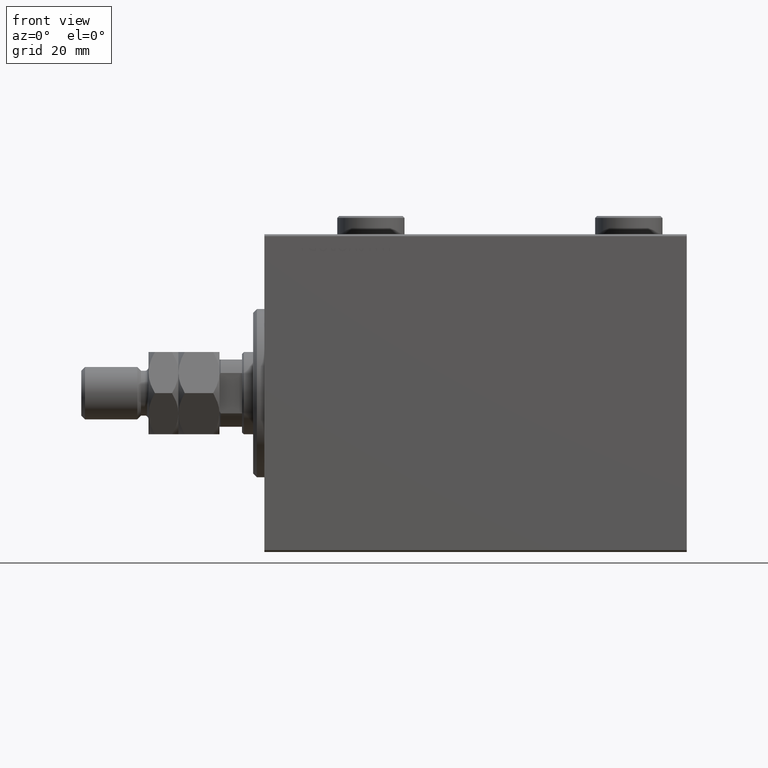
[diagram: clean part render]
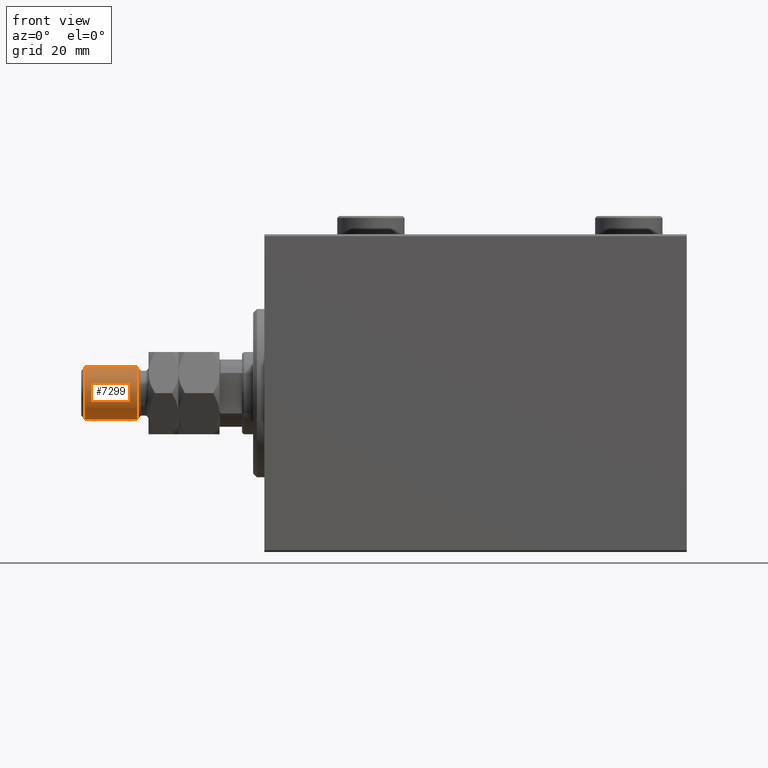
[diagram: same view with one face highlighted and labeled with its STEP entity id]
A machine part, front view. The second image highlights one B-rep face of the part: STEP entity #7299.
In plain terms, the highlighted cylindrical surface (edge-blend (fillet) strip) has radius 7 mm, axis along (1, -0, -0).
Its self-contained STEP definition (entity closure, byte-faithful):
#673 = ORIENTED_EDGE ( 'NONE', *, *, #34372, .T. ) ;
#776 = AXIS2_PLACEMENT_3D ( 'NONE', #38901, #21483, #10975 ) ;
#2228 = LINE ( 'NONE', #30619, #37903 ) ;
#3081 = CARTESIAN_POINT ( 'NONE',  ( 0.000000000000000000, 0.000000000000000000, 35.99999999999999289 ) ) ;
#3882 = FACE_OUTER_BOUND ( 'NONE', #28947, .T. ) ;
#6115 = CYLINDRICAL_SURFACE ( 'NONE', #36049, 7.000000000000000000 ) ;
#7299 = ADVANCED_FACE ( 'NONE', ( #3882 ), #6115, .T. ) ;
#10451 = VERTEX_POINT ( 'NONE', #32788 ) ;
#10938 = EDGE_CURVE ( 'NONE', #18271, #23264, #39216, .T. ) ;
#10975 = DIRECTION ( 'NONE',  ( 1.000000000000000000, 0.000000000000000000, 0.000000000000000000 ) ) ;
#12831 = DIRECTION ( 'NONE',  ( -0.000000000000000000, -0.000000000000000000, -1.000000000000000000 ) ) ;
#13269 = DIRECTION ( 'NONE',  ( -1.000000000000000000, 0.000000000000000000, 0.000000000000000000 ) ) ;
#15927 = ORIENTED_EDGE ( 'NONE', *, *, #25767, .F. ) ;
#18271 = VERTEX_POINT ( 'NONE', #43672 ) ;
#20457 = LINE ( 'NONE', #24043, #24339 ) ;
#21337 = CIRCLE ( 'NONE', #776, 7.000000000000000000 ) ;
#21483 = DIRECTION ( 'NONE',  ( -0.000000000000000000, -0.000000000000000000, 1.000000000000000000 ) ) ;
#23264 = VERTEX_POINT ( 'NONE', #29104 ) ;
#24043 = CARTESIAN_POINT ( 'NONE',  ( -7.000000000000000000, 0.000000000000000000, 37.00000000000000000 ) ) ;
#24339 = VECTOR ( 'NONE', #12831, 1000.000000000000000 ) ;
#25767 = EDGE_CURVE ( 'NONE', #18271, #28061, #2228, .T. ) ;
#28061 = VERTEX_POINT ( 'NONE', #41675 ) ;
#28947 = EDGE_LOOP ( 'NONE', ( #15927, #38396, #673, #33581 ) ) ;
#29104 = CARTESIAN_POINT ( 'NONE',  ( -7.000000000000000000, 0.000000000000000000, 35.99999999999999289 ) ) ;
#30619 = CARTESIAN_POINT ( 'NONE',  ( 7.000000000000000000, 8.572527594031473190E-16, 37.00000000000000000 ) ) ;
#31767 = EDGE_CURVE ( 'NONE', #10451, #28061, #21337, .T. ) ;
#32788 = CARTESIAN_POINT ( 'NONE',  ( -7.000000000000000000, 0.000000000000000000, 22.00000000000000355 ) ) ;
#32978 = DIRECTION ( 'NONE',  ( -0.000000000000000000, -0.000000000000000000, -1.000000000000000000 ) ) ;
#33130 = AXIS2_PLACEMENT_3D ( 'NONE', #3081, #46713, #45898 ) ;
#33581 = ORIENTED_EDGE ( 'NONE', *, *, #31767, .T. ) ;
#34372 = EDGE_CURVE ( 'NONE', #23264, #10451, #20457, .T. ) ;
#36049 = AXIS2_PLACEMENT_3D ( 'NONE', #36548, #32978, #13269 ) ;
#36548 = CARTESIAN_POINT ( 'NONE',  ( 0.000000000000000000, 0.000000000000000000, 37.00000000000000000 ) ) ;
#37903 = VECTOR ( 'NONE', #45863, 1000.000000000000000 ) ;
#38396 = ORIENTED_EDGE ( 'NONE', *, *, #10938, .T. ) ;
#38901 = CARTESIAN_POINT ( 'NONE',  ( 0.000000000000000000, 0.000000000000000000, 22.00000000000000355 ) ) ;
#39216 = CIRCLE ( 'NONE', #33130, 7.000000000000000000 ) ;
#41675 = CARTESIAN_POINT ( 'NONE',  ( 7.000000000000000000, 8.572527594031473190E-16, 22.00000000000000355 ) ) ;
#43672 = CARTESIAN_POINT ( 'NONE',  ( 7.000000000000000000, 8.572527594031473190E-16, 35.99999999999999289 ) ) ;
#45863 = DIRECTION ( 'NONE',  ( -0.000000000000000000, -0.000000000000000000, -1.000000000000000000 ) ) ;
#45898 = DIRECTION ( 'NONE',  ( 1.000000000000000000, 0.000000000000000000, 0.000000000000000000 ) ) ;
#46713 = DIRECTION ( 'NONE',  ( 0.000000000000000000, 0.000000000000000000, -1.000000000000000000 ) ) ;